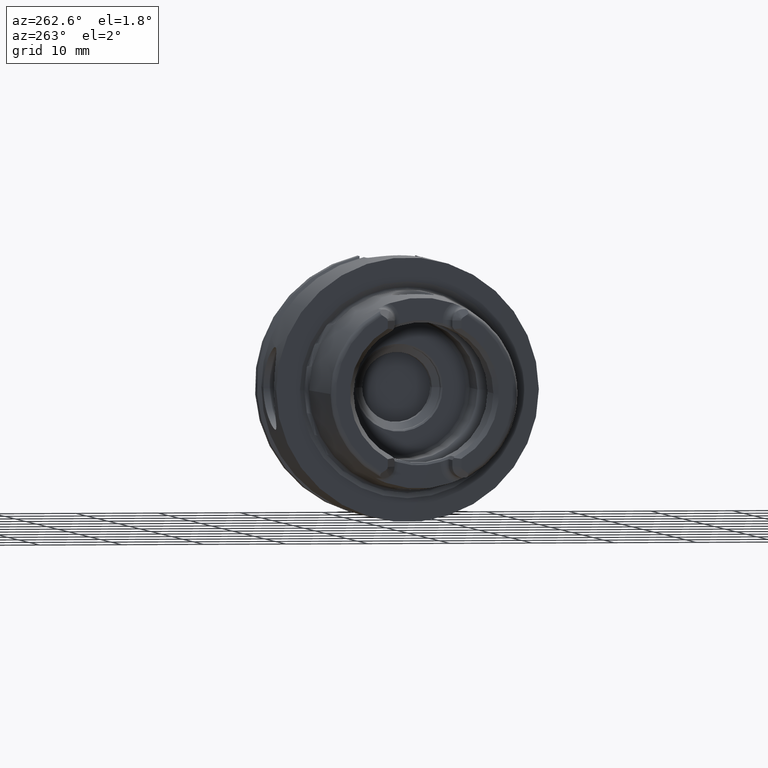
[diagram: clean part render]
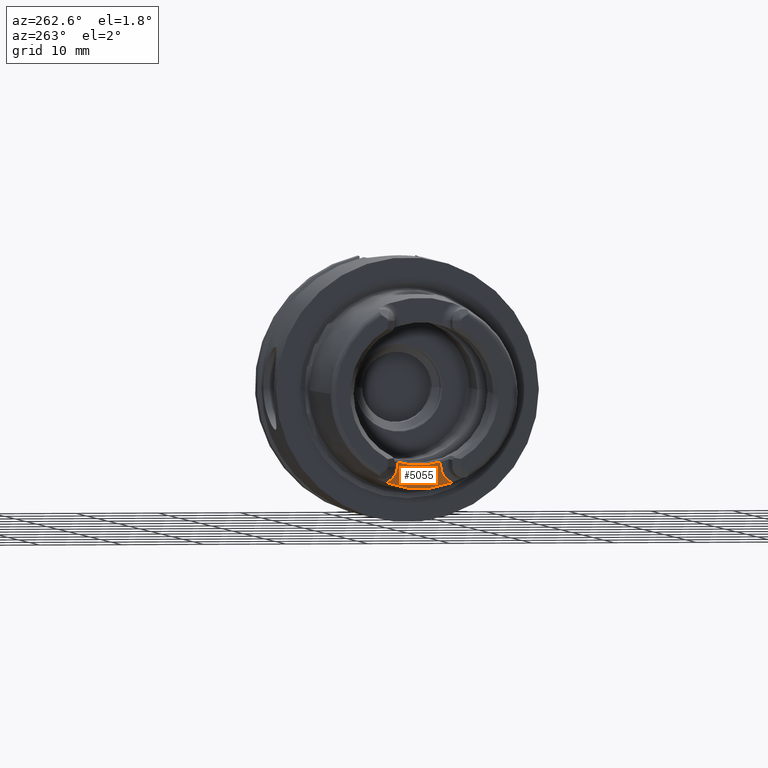
[diagram: same view with one face highlighted and labeled with its STEP entity id]
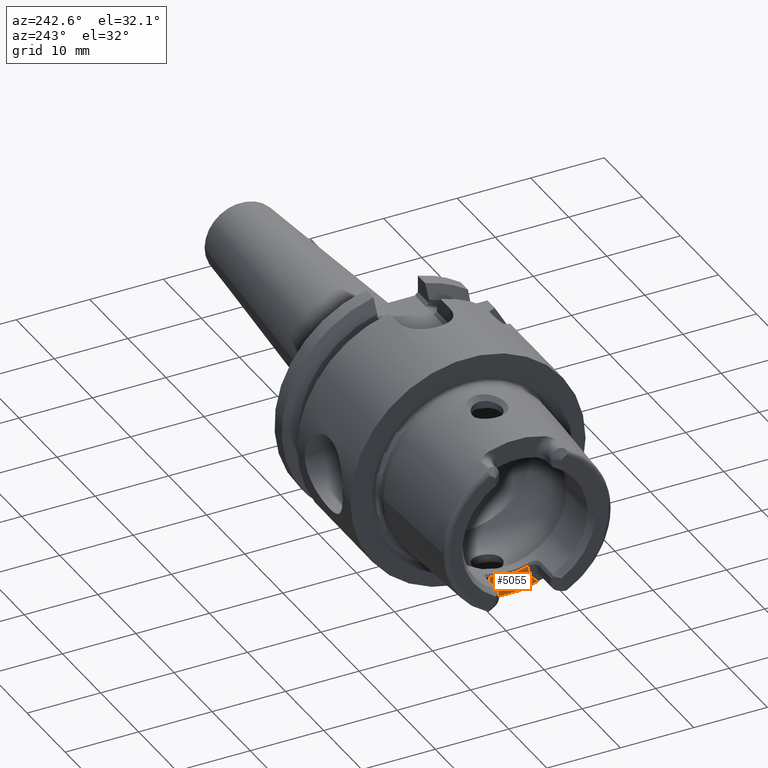
[diagram: same view with one face highlighted and labeled with its STEP entity id]
A machine part, auxiliary view. The second image highlights one B-rep face of the part: STEP entity #5055.
A second angle (auxiliary view) of the same face is appended — the face is thin or edge-on in the first view.
In plain terms, the highlighted planar face has unit normal (-1, 0, 0).
Its self-contained STEP definition (entity closure, byte-faithful):
#516=CARTESIAN_POINT('',(-1.085E1,0.E0,0.E0));
#517=DIRECTION('',(1.E0,0.E0,0.E0));
#518=DIRECTION('',(0.E0,-3.439439975019E-1,-9.389901631979E-1));
#519=AXIS2_PLACEMENT_3D('',#516,#517,#518);
#1746=CARTESIAN_POINT('',(-1.085E1,3.996702869122E0,-1.091126667884E1));
#1783=CARTESIAN_POINT('',(-1.085E1,-2.624999999959E0,-8.402911899448E0));
#1784=CARTESIAN_POINT('',(-1.085E1,-2.198958793743E0,-8.540931191787E0));
#1785=CARTESIAN_POINT('',(-1.085E1,-1.336780874062E0,-8.746973584105E0));
#1786=CARTESIAN_POINT('',(-1.085E1,1.616641793156E-6,-8.852763294747E0));
#1787=CARTESIAN_POINT('',(-1.085E1,1.336782420589E0,-8.746973236908E0));
#1788=CARTESIAN_POINT('',(-1.085E1,2.198959401135E0,-8.540930995024E0));
#1789=CARTESIAN_POINT('',(-1.085E1,2.624999999963E0,-8.402911899447E0));
#1791=DIRECTION('',(0.E0,-2.757626721016E-10,-1.E0));
#1792=VECTOR('',#1791,4.170881001325E-1);
#1793=CARTESIAN_POINT('',(-1.085E1,-2.624999999959E0,-8.402911899448E0));
#1794=LINE('',#1793,#1792);
#1795=CARTESIAN_POINT('',(-1.085E1,-4.905E0,-8.82E0));
#1796=DIRECTION('',(-1.E0,0.E0,0.E0));
#1797=DIRECTION('',(0.E0,1.E0,0.E0));
#1798=AXIS2_PLACEMENT_3D('',#1795,#1796,#1797);
#1800=CARTESIAN_POINT('',(-1.085E1,4.905E0,-8.82E0));
#1801=DIRECTION('',(-1.E0,0.E0,0.E0));
#1802=DIRECTION('',(0.E0,-3.983759345955E-1,-9.172222275628E-1));
#1803=AXIS2_PLACEMENT_3D('',#1800,#1801,#1802);
#1805=DIRECTION('',(0.E0,-4.450356545875E-10,1.E0));
#1806=VECTOR('',#1805,4.170881001379E-1);
#1807=CARTESIAN_POINT('',(-1.085E1,2.625000000149E0,-8.819999999584E0));
#1808=LINE('',#1807,#1806);
#1888=CARTESIAN_POINT('',(-1.085E1,-3.996702869122E0,-1.091126667884E1));
#2652=VERTEX_POINT('',#1888);
#2653=VERTEX_POINT('',#1746);
#2657=CARTESIAN_POINT('',(-1.085E1,-2.625E0,-8.82E0));
#2659=VERTEX_POINT('',#2657);
#2661=CARTESIAN_POINT('',(-1.085E1,2.625E0,-8.82E0));
#2663=VERTEX_POINT('',#2661);
#2689=VERTEX_POINT('',#1783);
#2690=VERTEX_POINT('',#1789);
#5040=CARTESIAN_POINT('',(-1.085E1,0.E0,0.E0));
#5041=DIRECTION('',(-1.E0,0.E0,0.E0));
#5042=DIRECTION('',(0.E0,0.E0,1.E0));
#5043=AXIS2_PLACEMENT_3D('',#5040,#5041,#5042);
#5044=PLANE('',#5043);
#5045=ORIENTED_EDGE('',*,*,#5031,.F.);
#5047=ORIENTED_EDGE('',*,*,#5046,.T.);
#5049=ORIENTED_EDGE('',*,*,#5048,.T.);
#5050=ORIENTED_EDGE('',*,*,#3591,.T.);
#5051=ORIENTED_EDGE('',*,*,#4940,.T.);
#5052=ORIENTED_EDGE('',*,*,#4952,.T.);
#5053=EDGE_LOOP('',(#5045,#5047,#5049,#5050,#5051,#5052));
#5054=FACE_OUTER_BOUND('',#5053,.F.);
#5055=ADVANCED_FACE('',(#5054),#5044,.T.);
#520=CIRCLE('',#519,1.162021404110E1);
#1790=B_SPLINE_CURVE_WITH_KNOTS('',3,(#1783,#1784,#1785,#1786,#1787,#1788,
#1789),.UNSPECIFIED.,.F.,.F.,(4,1,1,1,4),(0.E0,2.5E-1,5.E-1,7.5E-1,1.E0),
.UNSPECIFIED.);
#1799=CIRCLE('',#1798,2.28E0);
#1804=CIRCLE('',#1803,2.28E0);
#3591=EDGE_CURVE('',#2652,#2653,#520,.T.);
#4940=EDGE_CURVE('',#2653,#2663,#1804,.T.);
#4952=EDGE_CURVE('',#2663,#2690,#1808,.T.);
#5031=EDGE_CURVE('',#2689,#2690,#1790,.T.);
#5046=EDGE_CURVE('',#2689,#2659,#1794,.T.);
#5048=EDGE_CURVE('',#2659,#2652,#1799,.T.);